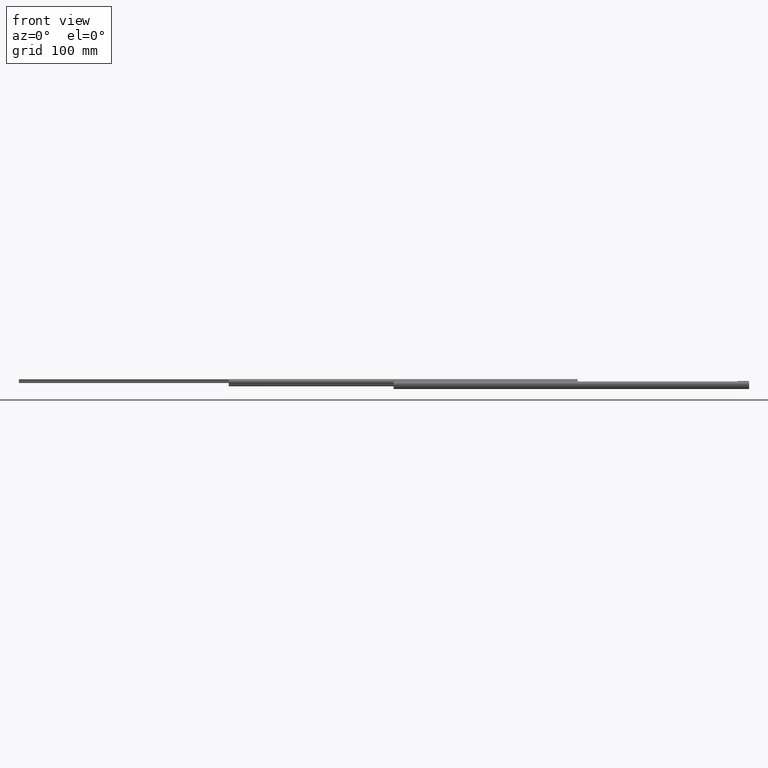
[diagram: clean part render]
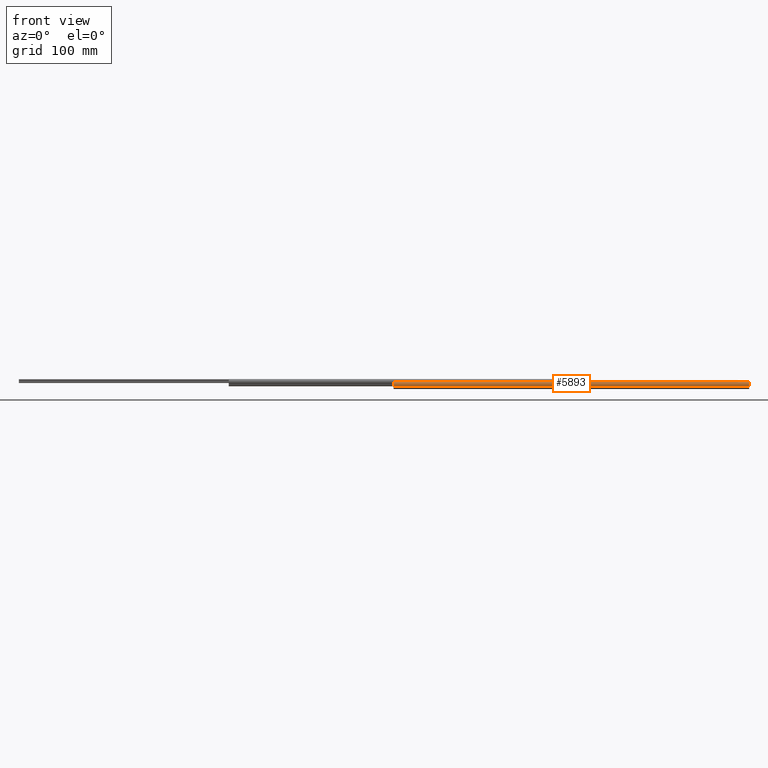
[diagram: same view with one face highlighted and labeled with its STEP entity id]
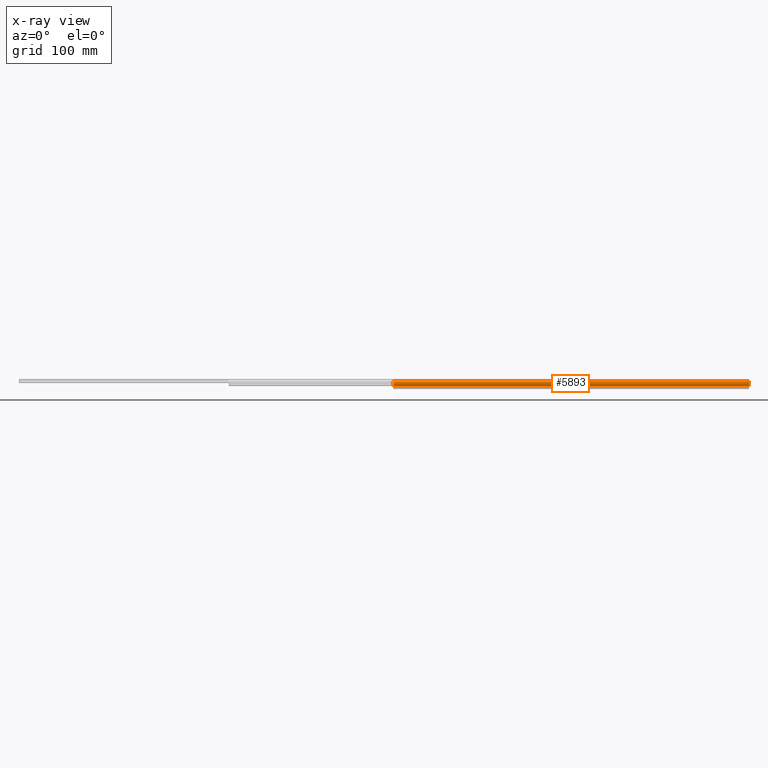
[diagram: x-ray of the same camera — body ghosted, the highlighted face saturated]
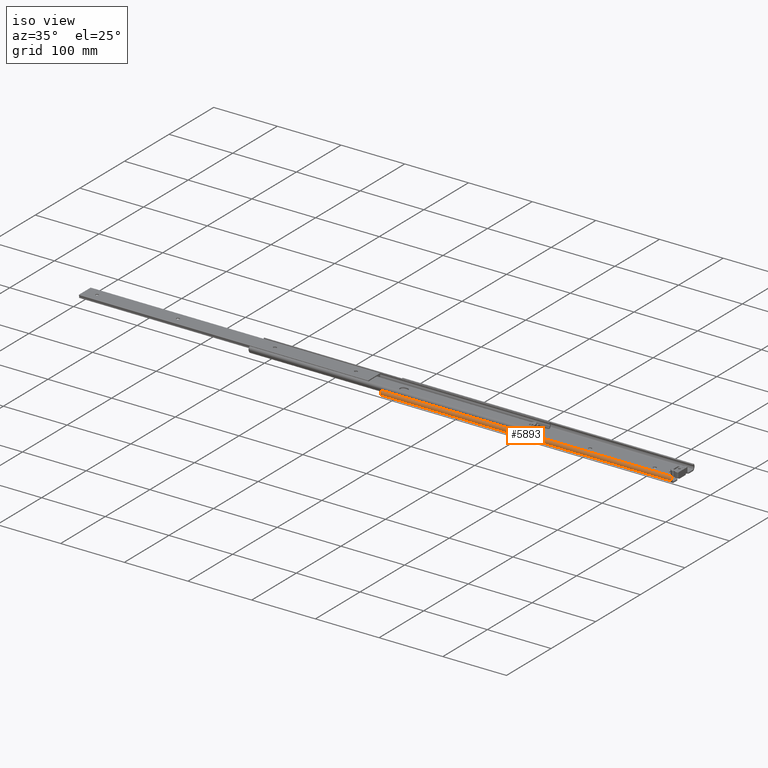
[diagram: same view with one face highlighted and labeled with its STEP entity id]
A machine part, front view. The second image highlights one B-rep face of the part: STEP entity #5893.
The next image is the same camera in x-ray: the body ghosted, the highlighted face saturated — about 0% of this face is hidden behind the body in this view.
A second angle (iso view) of the same face is appended — the face is thin or edge-on in the first view.
In plain terms, the highlighted cylindrical surface (edge-blend (fillet) strip) has radius 4.75 mm, axis along (-1, -0, -0).
Its self-contained STEP definition (entity closure, byte-faithful):
#563 = EDGE_CURVE ( 'NONE', #1182, #4305, #6681, .T. ) ;
#833 = VECTOR ( 'NONE', #7055, 1000.000000000000000 ) ;
#932 = DIRECTION ( 'NONE',  ( -1.000000000000000000, -0.0000000000000000000, -0.0000000000000000000 ) ) ;
#991 = EDGE_CURVE ( 'NONE', #3091, #1182, #5228, .T. ) ;
#1173 = ORIENTED_EDGE ( 'NONE', *, *, #563, .F. ) ;
#1182 = VERTEX_POINT ( 'NONE', #7374 ) ;
#1205 = EDGE_CURVE ( 'NONE', #4522, #4305, #7252, .T. ) ;
#2036 = ORIENTED_EDGE ( 'NONE', *, *, #2088, .T. ) ;
#2088 = EDGE_CURVE ( 'NONE', #3091, #4522, #7431, .T. ) ;
#2583 = DIRECTION ( 'NONE',  ( -1.000000000000000000, -0.0000000000000000000, -0.0000000000000000000 ) ) ;
#3087 = DIRECTION ( 'NONE',  ( -1.000000000000000000, -0.0000000000000000000, -0.0000000000000000000 ) ) ;
#3091 = VERTEX_POINT ( 'NONE', #6008 ) ;
#3105 = CYLINDRICAL_SURFACE ( 'NONE', #3393, 4.749999999999913800 ) ;
#3381 = CARTESIAN_POINT ( 'NONE',  ( 457.1999999999999900, -23.44899979584744900, 9.769999999999999600 ) ) ;
#3393 = AXIS2_PLACEMENT_3D ( 'NONE', #6306, #6952, #5111 ) ;
#3654 = CARTESIAN_POINT ( 'NONE',  ( 457.1999999999999900, -21.00000000001258400, 5.700000000000000200 ) ) ;
#3757 = DIRECTION ( 'NONE',  ( 0.0000000000000000000, 0.0000000000000000000, -1.000000000000000000 ) ) ;
#3990 = VECTOR ( 'NONE', #932, 1000.000000000000000 ) ;
#4305 = VERTEX_POINT ( 'NONE', #4965 ) ;
#4522 = VERTEX_POINT ( 'NONE', #3381 ) ;
#4649 = ORIENTED_EDGE ( 'NONE', *, *, #991, .F. ) ;
#4921 = FACE_OUTER_BOUND ( 'NONE', #7015, .T. ) ;
#4965 = CARTESIAN_POINT ( 'NONE',  ( 0.0000000000000000000, -23.44899979584744900, 9.769999999999999600 ) ) ;
#5111 = DIRECTION ( 'NONE',  ( 0.0000000000000000000, 0.0000000000000000000, 1.000000000000000000 ) ) ;
#5144 = CARTESIAN_POINT ( 'NONE',  ( 457.1999999999999900, -23.44899979584744900, 9.769999999999999600 ) ) ;
#5228 = LINE ( 'NONE', #6625, #3990 ) ;
#5244 = AXIS2_PLACEMENT_3D ( 'NONE', #3654, #2583, #3757 ) ;
#5339 = AXIS2_PLACEMENT_3D ( 'NONE', #6745, #3087, #7346 ) ;
#5893 = ADVANCED_FACE ( 'NONE', ( #4921 ), #3105, .T. ) ;
#6008 = CARTESIAN_POINT ( 'NONE',  ( 457.1999999999999900, -25.38040352776301500, 3.863001106676766200 ) ) ;
#6306 = CARTESIAN_POINT ( 'NONE',  ( 457.1999999999999900, -21.00000000001258400, 5.700000000000000200 ) ) ;
#6625 = CARTESIAN_POINT ( 'NONE',  ( 457.1999999999999900, -25.38040352776301500, 3.863001106676766200 ) ) ;
#6681 = CIRCLE ( 'NONE', #5339, 4.749999999999913800 ) ;
#6745 = CARTESIAN_POINT ( 'NONE',  ( 0.0000000000000000000, -21.00000000001258400, 5.700000000000000200 ) ) ;
#6952 = DIRECTION ( 'NONE',  ( -1.000000000000000000, -0.0000000000000000000, -0.0000000000000000000 ) ) ;
#7015 = EDGE_LOOP ( 'NONE', ( #1173, #4649, #2036, #7235 ) ) ;
#7055 = DIRECTION ( 'NONE',  ( -1.000000000000000000, -0.0000000000000000000, -0.0000000000000000000 ) ) ;
#7235 = ORIENTED_EDGE ( 'NONE', *, *, #1205, .T. ) ;
#7252 = LINE ( 'NONE', #5144, #833 ) ;
#7346 = DIRECTION ( 'NONE',  ( 0.0000000000000000000, 0.0000000000000000000, -1.000000000000000000 ) ) ;
#7374 = CARTESIAN_POINT ( 'NONE',  ( 0.0000000000000000000, -25.38040352776301500, 3.863001106676766200 ) ) ;
#7431 = CIRCLE ( 'NONE', #5244, 4.749999999999913800 ) ;